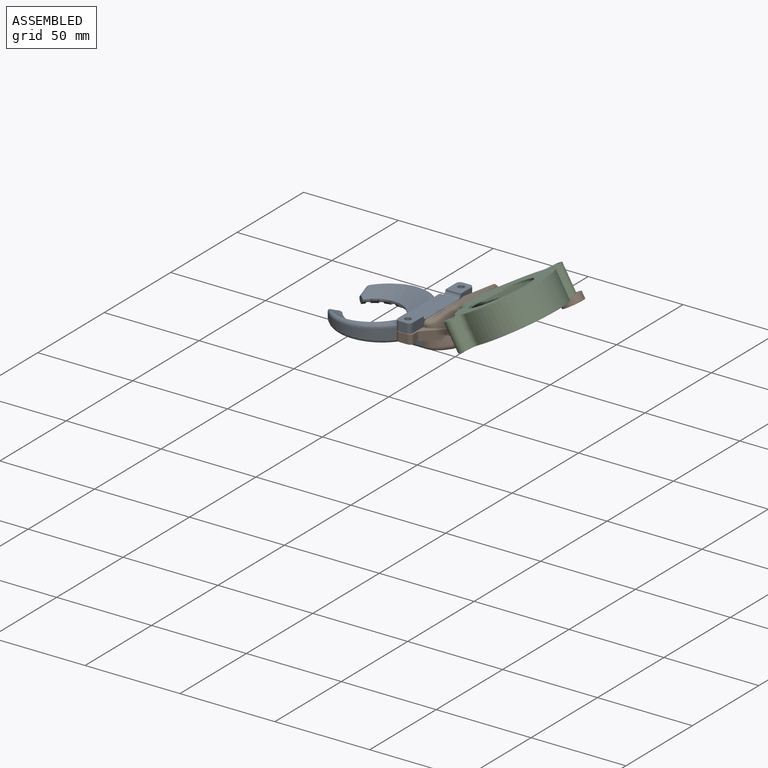
[diagram: assembled view]
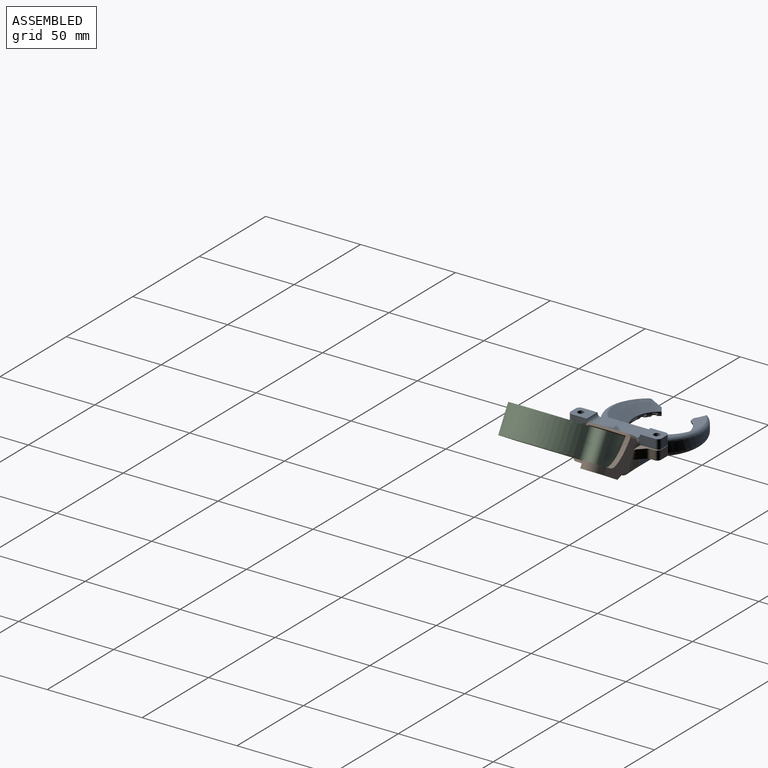
[diagram: assembled view, second angle]
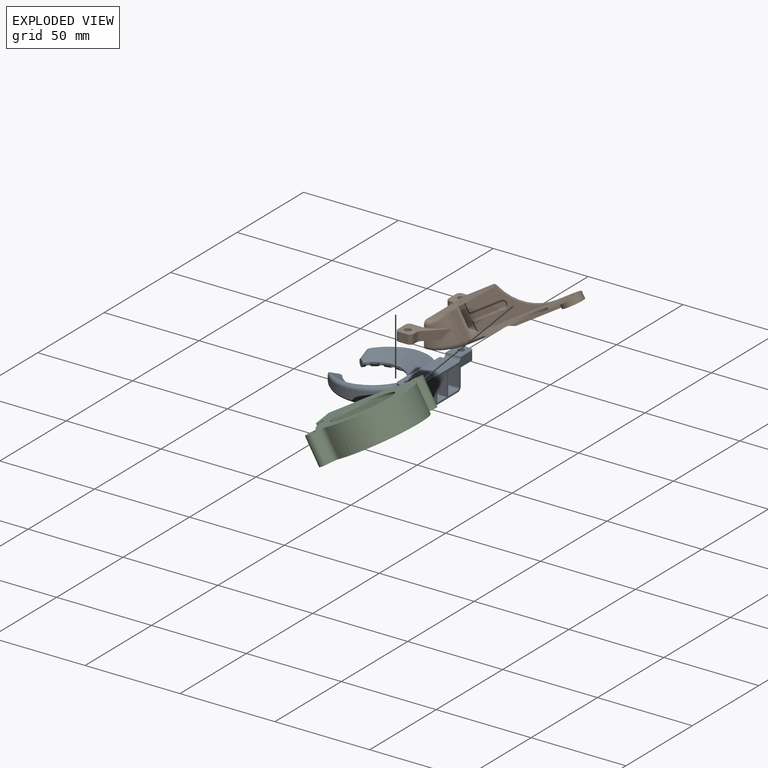
[diagram: exploded view]
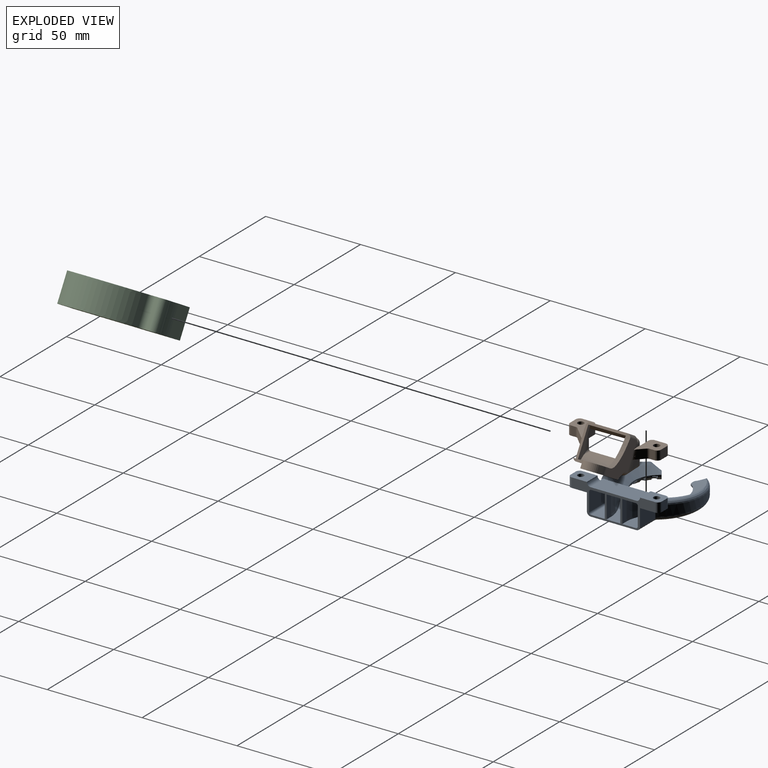
[diagram: exploded view, second angle]
ASSEMBLY  parts=3 mates=3
PART A: 230 faces, bbox 52.5x56.8x17.5 mm
  f0: plane 48.51x16.96mm, normal (0,0,1), area 265.4mm2, adj f13,f14,f15,f16,f17,f18,f42,f47
  f1: plane 9.54x7.19mm, normal (0,0,-1), area 65.7mm2, adj f42,f46,f57,f99
  f2: cone r=16mm half-angle=45deg, axis (0,0,-1), area 8.1mm2, adj f22,f25,f69,f74
  f3: cone r=16.85mm half-angle=45deg, axis (0,0,-1), area 3.1mm2, adj f6,f44,f67,f100
  f4: cone r=24mm half-angle=55.3deg, axis (0,0,1), area 344.9mm2, adj f21,f22,f26,f28,f29,f32
  f5: plane 16.88x11.17mm, normal (0,0.69,-0.72), area 183mm2, adj f6,f45,f51,f63,f64,f100,f106,f154
  f6: cone r=24.68mm half-angle=55.3deg, axis (0,0,1), area 34.2mm2, adj f3,f5,f19,f63,f64,f67,f68,f100
  f7: cone r=16mm half-angle=45deg, axis (0,0,-1), area 8.1mm2, adj f22,f25,f85,f89
  f8: cone r=16mm half-angle=45deg, axis (0,0,-1), area 8.1mm2, adj f22,f25,f81,f86
  f9: cone r=16mm half-angle=45deg, axis (0,0,-1), area 8.1mm2, adj f22,f25,f77,f82
  f10: cone r=16mm half-angle=45deg, axis (0,0,-1), area 8.1mm2, adj f22,f25,f73,f78
  f11: cone r=16mm half-angle=45deg, axis (0,0,-1), area 8.1mm2, adj f22,f25,f65,f70
  f12: cone r=16mm half-angle=45deg, axis (0,0,-1), area 10.7mm2, adj f22,f25,f66,f157
  f13: cone r=16.85mm half-angle=45deg, axis (0,0,-1), area 2.4mm2, adj f0,f47,f52,f55,f88
  f14: cone r=16.85mm half-angle=45deg, axis (0,0,-1), area 8.6mm2, adj f0,f52,f83,f88
  f15: cone r=16.85mm half-angle=45deg, axis (0,0,-1), area 8.6mm2, adj f0,f52,f79,f83
  f16: cone r=16.85mm half-angle=45deg, axis (0,0,-1), area 8.6mm2, adj f0,f52,f75,f79
  f17: cone r=16.85mm half-angle=45deg, axis (0,0,-1), area 8.6mm2, adj f0,f52,f71,f75
  f18: cone r=16.85mm half-angle=45deg, axis (0,0,-1), area 3.1mm2, adj f0,f52,f71,f99
  f19: cone r=16.85mm half-angle=45deg, axis (0,0,-1), area 8.6mm2, adj f6,f44,f63,f67
  f20: plane 4.01x2.08mm, normal (0,-1,0), area 4.5mm2, adj f21,f24,f29,f31
  f21: plane 4.36x3.82mm, normal (0.83,-0.55,0), area 11.3mm2, adj f4,f20,f22,f27,f29,f31
  f22: cylinder r=14mm len=28mm, axis (0,0,-1), area 54mm2, adj f2,f4,f7,f8,f9,f10,f11,f12
  f23: plane 12.43x10.01mm, normal (-1,0,0), area 105.6mm2, adj f26,f36,f40,f42,f60,f61,f62,f97
  f24: cylinder r=23.57mm len=37.39mm, axis (0,0,-1), area 189.7mm2, adj f20,f28,f29,f30,f97
  f25: plane 48.51x43.16mm, normal (0,0,-1), area 844.2mm2, adj f2,f7,f8,f9,f10,f11,f12,f27
  f26: plane 23.18x12.16mm, normal (0,-0.07,1), area 19.2mm2, adj f4,f23,f28,f32,f61,f98
  f27: cone r=16mm half-angle=45deg, axis (0,0,-1), area 4.9mm2, adj f21,f22,f25,f31,f90
  f28: bspline ~40.28x13.61mm, area 114.9mm2, adj f4,f24,f26,f29,f98
  f29: bspline ~11.68x7.46mm, area 23.6mm2, adj f4,f20,f21,f24,f28
  f30: torus R=21.57mm, axis (0,0,1), area 133.5mm2, adj f24,f25,f31,f96
  f31: cylinder r=2mm len=5.12mm, axis (1,0,0), area 13.4mm2, adj f20,f21,f25,f27,f30
  f32: plane 24x11.5mm, normal (0,-0.69,0.72), area 279.3mm2, adj f4,f26,f43,f61,f105,f123,f152
  f33: cylinder r=1.65mm len=5mm, axis (0,0,1), area 51.8mm2, adj f38,f40
  f34: plane 5x4mm, normal (-1,0,0), area 20mm2, adj f35,f38,f39,f40
  f35: cylinder r=2mm len=5mm, axis (0,0,-1), area 15.7mm2, adj f34,f36,f38,f40
  f36: plane 10x5mm, normal (0,-1,0), area 41.7mm2, adj f23,f35,f37,f38,f40,f60
  f37: cylinder r=2mm len=8mm, axis (0,1,0), area 25.1mm2, adj f36,f38,f42,f43
  f38: plane 10x8mm, normal (0,0,1), area 69.7mm2, adj f33,f34,f35,f36,f37,f39,f42
  f39: cylinder r=2mm len=5mm, axis (0,0,-1), area 15.7mm2, adj f34,f38,f40,f42
  f40: plane 10x8mm, normal (0,0,-1), area 69.7mm2, adj f23,f33,f34,f35,f36,f39,f42
  f41: plane 12.37x9.9mm, normal (1,0,0), area 115.9mm2, adj f42,f57,f58,f59,f92,f93
  f42: plane 44x16mm, normal (0,1,0), area 192mm2, adj f0,f1,f23,f25,f37,f38,f39,f40
  f43: plane 24x10mm, normal (0,0,1), area 240mm2, adj f32,f37,f42,f60,f133,f151
  f44: plane 22.66x21.64mm, normal (0,0,1), area 228mm2, adj f3,f19,f42,f51,f63,f67,f100,f104
  f45: plane 9.69x9.53mm, normal (0,0,-1), area 73.9mm2, adj f5,f42,f100,f191
  f46: plane 6.29x6.1mm, normal (0,0.69,-0.72), area 33mm2, adj f1,f52,f53,f58,f91,f99
  f47: cylinder r=0.8mm len=3.31mm, axis (1,0,0), area 3.8mm2, adj f0,f13,f48,f55,f56
  f48: torus R=21.57mm, axis (0,0,-1), area 51.9mm2, adj f0,f47,f54,f95
  f49: bspline ~11.02x5.97mm, area 7.1mm2, adj f50,f52,f54,f55,f56
  f50: bspline ~38.22x12.4mm, area 37.2mm2, adj f49,f52,f53,f54,f91,f92
  f51: cone r=16.85mm half-angle=45deg, axis (0,0,-1), area 10.7mm2, adj f5,f44,f63,f154
  f52: cone r=24.68mm half-angle=55.3deg, axis (0,0,1), area 264.1mm2, adj f13,f14,f15,f16,f17,f18,f46,f49
  f53: plane 13.76x10.47mm, normal (0,0.07,-1), area 8.3mm2, adj f46,f50,f52,f91
  f54: cylinder r=22.37mm len=35.58mm, axis (0,0,-1), area 193.2mm2, adj f48,f49,f50,f56,f93,f94
  f55: plane 2.77x2.33mm, normal (-0.83,0.55,0), area 3mm2, adj f13,f47,f49,f52,f56
  f56: plane 2.96x2.18mm, normal (0,1,0), area 4.3mm2, adj f47,f49,f54,f55
  f57: cylinder r=1mm len=9.52mm, axis (0,1,0), area 14.6mm2, adj f1,f41,f42,f58
  f58: cylinder r=1mm len=5mm, axis (0,0.72,0.69), area 8.2mm2, adj f41,f46,f57,f91
  f59: cylinder r=1mm len=13.44mm, axis (0,-1,0), area 19.7mm2, adj f0,f41,f42,f94,f95
  f60: cylinder r=2mm len=2mm, axis (0,1,0), area 5mm2, adj f23,f36,f43,f61
  f61: cylinder r=2mm len=5.88mm, axis (0,0.72,0.69), area 14.5mm2, adj f23,f26,f32,f60
  f62: cylinder r=2mm len=13.57mm, axis (0,-1,0), area 39.5mm2, adj f23,f25,f42,f96
  f63: bspline ~17.17x3.75mm, area 6mm2, adj f5,f6,f19,f25,f44,f51,f64,f65
  f64: plane 2.69x1.83mm, normal (0,0,-1), area 3.5mm2, adj f5,f6,f22,f63,f65,f66
  f65: plane 2.51x2.02mm, normal (0.98,0.21,0), area 1.9mm2, adj f11,f22,f25,f63,f64
  f66: plane 2.51x2.02mm, normal (-0.98,-0.21,0), area 1.9mm2, adj f12,f22,f25,f63,f64
  f67: bspline ~7.06x5.58mm, area 6mm2, adj f3,f6,f19,f25,f44,f68,f69,f70
  f68: plane 2.82x2.5mm, normal (0,0,-1), area 3.5mm2, adj f6,f22,f67,f69,f70
  f69: plane 2.51x1.75mm, normal (0.84,0.54,0), area 1.9mm2, adj f2,f22,f25,f67,f68
  f70: plane 2.51x1.75mm, normal (-0.84,-0.54,0), area 1.9mm2, adj f11,f22,f25,f67,f68
  f71: bspline ~13.29x11.89mm, area 6mm2, adj f0,f17,f18,f25,f52,f72,f73,f74
  f72: plane 2.8x2.59mm, normal (0,0,-1), area 3.5mm2, adj f22,f52,f71,f73,f74
  f73: plane 2.51x1.65mm, normal (0.6,0.8,0), area 1.9mm2, adj f10,f22,f25,f71,f72
  f74: plane 2.51x1.65mm, normal (-0.6,-0.8,0), area 1.9mm2, adj f2,f22,f25,f71,f72
  f75: bspline ~16.96x7mm, area 6mm2, adj f0,f16,f17,f25,f52,f76,f77,f78
  f76: plane 2.75x2.03mm, normal (0,0,-1), area 3.5mm2, adj f22,f52,f75,f77,f78
  f77: plane 2.51x1.98mm, normal (0.28,0.96,0), area 1.9mm2, adj f9,f22,f25,f75,f76
  f78: plane 2.51x1.98mm, normal (-0.28,-0.96,0), area 1.9mm2, adj f10,f22,f25,f75,f76
  f79: bspline ~17.31x3.62mm, area 6mm2, adj f0,f15,f16,f25,f52,f80,f81,f82
  f80: plane 2.57x1.56mm, normal (0,0,-1), area 3.5mm2, adj f22,f52,f79,f81,f82
  f81: plane 2.51x2.06mm, normal (-0.07,1,0), area 1.9mm2, adj f8,f22,f25,f79,f80
  f82: plane 2.51x2.06mm, normal (0.07,-1,0), area 1.9mm2, adj f9,f22,f25,f79,f80
  f83: bspline ~7.31x4.91mm, area 6mm2, adj f0,f14,f15,f25,f52,f84,f85,f86
  f84: plane 2.81x2.29mm, normal (0,0,-1), area 3.5mm2, adj f22,f52,f83,f85,f86
  f85: plane 2.51x1.88mm, normal (-0.41,0.91,0), area 1.9mm2, adj f7,f22,f25,f83,f84
  f86: plane 2.51x1.88mm, normal (0.41,-0.91,0), area 1.9mm2, adj f8,f22,f25,f83,f84
  f87: plane 2.72x2.72mm, normal (0,0,-1), area 3.5mm2, adj f22,f52,f88,f89,f90
  f88: bspline ~13.45x13.45mm, area 6mm2, adj f0,f13,f14,f25,f52,f87,f89,f90
  f89: plane 2.51x1.46mm, normal (0.71,-0.71,0), area 1.9mm2, adj f7,f22,f25,f87,f88
  f90: plane 2.51x1.46mm, normal (-0.71,0.71,0), area 1.9mm2, adj f22,f25,f27,f87,f88
  f91: bspline ~2x1.97mm, area 2.6mm2, adj f46,f50,f53,f58,f92
  f92: bspline ~1.76x1.36mm, area 1.2mm2, adj f41,f50,f91,f93
  f93: cylinder r=2mm len=5.8mm, axis (0,0,-1), area 10.7mm2, adj f41,f54,f92,f94
  f94: bspline ~1.63x1.01mm, area 0.2mm2, adj f54,f59,f93,f95
  f95: bspline ~1.79x1.68mm, area 1mm2, adj f48,f59,f94
  f96: bspline ~2.75x2.01mm, area 2.4mm2, adj f30,f62,f97
  f97: plane 5.68x1.55mm, normal (-0.9,0.43,0), area 9.7mm2, adj f23,f24,f96,f98
  f98: bspline ~6.13x3.84mm, area 7.7mm2, adj f23,f26,f28,f97
  f99: extruded ~24.77x11.9mm, area 215.7mm2, adj f0,f1,f18,f42,f46,f52
  f100: extruded ~24.09x11.9mm, area 212.3mm2, adj f3,f5,f6,f42,f44,f45
  f101: plane 48.51x16.96mm, normal (0,0,1), area 265.4mm2, adj f42,f112,f113,f114,f115,f116,f117,f139
  f102: plane 9.54x7.19mm, normal (0,0,-1), area 65.7mm2, adj f42,f138,f148,f190
  f103: cone r=16mm half-angle=45deg, axis (0,0,-1), area 8.1mm2, adj f22,f25,f160,f165
  f104: cone r=16.85mm half-angle=45deg, axis (0,0,-1), area 3.1mm2, adj f44,f106,f158,f191
  f105: cone r=24mm half-angle=55.3deg, axis (0,0,1), area 344.9mm2, adj f22,f32,f120,f123,f125,f126
  f106: cone r=24.68mm half-angle=55.3deg, axis (0,0,1), area 34.2mm2, adj f5,f104,f118,f154,f155,f158,f159,f191
  f107: cone r=16mm half-angle=45deg, axis (0,0,-1), area 8.1mm2, adj f22,f25,f176,f180
  f108: cone r=16mm half-angle=45deg, axis (0,0,-1), area 8.1mm2, adj f22,f25,f172,f177
  f109: cone r=16mm half-angle=45deg, axis (0,0,-1), area 8.1mm2, adj f22,f25,f168,f173
  f110: cone r=16mm half-angle=45deg, axis (0,0,-1), area 8.1mm2, adj f22,f25,f164,f169
  f111: cone r=16mm half-angle=45deg, axis (0,0,-1), area 8.1mm2, adj f22,f25,f156,f161
  f112: cone r=16.85mm half-angle=45deg, axis (0,0,-1), area 2.4mm2, adj f101,f139,f143,f146,f179
  f113: cone r=16.85mm half-angle=45deg, axis (0,0,-1), area 8.6mm2, adj f101,f143,f174,f179
  f114: cone r=16.85mm half-angle=45deg, axis (0,0,-1), area 8.6mm2, adj f101,f143,f170,f174
  f115: cone r=16.85mm half-angle=45deg, axis (0,0,-1), area 8.6mm2, adj f101,f143,f166,f170
  f116: cone r=16.85mm half-angle=45deg, axis (0,0,-1), area 8.6mm2, adj f101,f143,f162,f166
  f117: cone r=16.85mm half-angle=45deg, axis (0,0,-1), area 3.1mm2, adj f101,f143,f162,f190
  f118: cone r=16.85mm half-angle=45deg, axis (0,0,-1), area 8.6mm2, adj f44,f106,f154,f158
  f119: plane 4.01x2.08mm, normal (0,-1,0), area 4.5mm2, adj f120,f122,f126,f128
  f120: plane 4.36x3.82mm, normal (-0.83,-0.55,0), area 11.3mm2, adj f22,f105,f119,f124,f126,f128
  f121: plane 12.43x10.01mm, normal (1,0,0), area 105.6mm2, adj f42,f123,f132,f136,f151,f152,f153,f188
  f122: cylinder r=23.57mm len=37.39mm, axis (0,0,-1), area 189.7mm2, adj f119,f125,f126,f127,f188
  f123: plane 23.18x12.16mm, normal (0,-0.07,1), area 19.2mm2, adj f32,f105,f121,f125,f152,f189
  f124: cone r=16mm half-angle=45deg, axis (0,0,-1), area 4.9mm2, adj f22,f25,f120,f128,f181
  f125: bspline ~40.28x13.61mm, area 114.9mm2, adj f105,f122,f123,f126,f189
  f126: bspline ~11.68x7.46mm, area 23.6mm2, adj f105,f119,f120,f122,f125
  f127: torus R=21.57mm, axis (0,0,1), area 133.5mm2, adj f25,f122,f128,f187
  f128: cylinder r=2mm len=5.12mm, axis (-1,0,0), area 13.4mm2, adj f25,f119,f120,f124,f127
  f129: cylinder r=1.65mm len=5mm, axis (0,0,1), area 51.8mm2, adj f134,f136
  f130: plane 5x4mm, normal (1,0,0), area 20mm2, adj f131,f134,f135,f136
  f131: cylinder r=2mm len=5mm, axis (0,0,-1), area 15.7mm2, adj f130,f132,f134,f136
  f132: plane 10x5mm, normal (0,-1,0), area 41.7mm2, adj f121,f131,f133,f134,f136,f151
  f133: cylinder r=2mm len=8mm, axis (0,1,0), area 25.1mm2, adj f42,f43,f132,f134
  f134: plane 10x8mm, normal (0,0,1), area 69.7mm2, adj f42,f129,f130,f131,f132,f133,f135
  f135: cylinder r=2mm len=5mm, axis (0,0,-1), area 15.7mm2, adj f42,f130,f134,f136
  f136: plane 10x8mm, normal (0,0,-1), area 69.7mm2, adj f42,f121,f129,f130,f131,f132,f135
  f137: plane 12.37x9.9mm, normal (-1,0,0), area 115.9mm2, adj f42,f148,f149,f150,f183,f184
  f138: plane 6.29x6.1mm, normal (0,0.69,-0.72), area 33mm2, adj f102,f143,f144,f149,f182,f190
  f139: cylinder r=0.8mm len=3.31mm, axis (-1,0,0), area 3.8mm2, adj f101,f112,f140,f146,f147
  f140: torus R=21.57mm, axis (0,0,-1), area 51.9mm2, adj f101,f139,f145,f186
  f141: bspline ~11.02x5.97mm, area 7.1mm2, adj f142,f143,f145,f146,f147
  f142: bspline ~38.22x12.4mm, area 37.2mm2, adj f141,f143,f144,f145,f182,f183
  f143: cone r=24.68mm half-angle=55.3deg, axis (0,0,1), area 264.1mm2, adj f112,f113,f114,f115,f116,f117,f138,f141
  f144: plane 13.76x10.47mm, normal (0,0.07,-1), area 8.3mm2, adj f138,f142,f143,f182
  f145: cylinder r=22.37mm len=35.58mm, axis (0,0,-1), area 193.2mm2, adj f140,f141,f142,f147,f184,f185
  f146: plane 2.77x2.33mm, normal (0.83,0.55,0), area 3mm2, adj f112,f139,f141,f143,f147
  f147: plane 2.96x2.18mm, normal (0,1,0), area 4.3mm2, adj f139,f141,f145,f146
  f148: cylinder r=1mm len=9.52mm, axis (0,1,0), area 14.6mm2, adj f42,f102,f137,f149
  f149: cylinder r=1mm len=5mm, axis (0,0.72,0.69), area 8.2mm2, adj f137,f138,f148,f182
  f150: cylinder r=1mm len=13.44mm, axis (0,-1,0), area 19.7mm2, adj f42,f101,f137,f185,f186
  f151: cylinder r=2mm len=2mm, axis (0,1,0), area 5mm2, adj f43,f121,f132,f152
  f152: cylinder r=2mm len=5.88mm, axis (0,0.72,0.69), area 14.5mm2, adj f32,f121,f123,f151
  f153: cylinder r=2mm len=13.57mm, axis (0,-1,0), area 39.5mm2, adj f25,f42,f121,f187
  f154: bspline ~17.17x3.75mm, area 6mm2, adj f5,f25,f44,f51,f106,f118,f155,f156
  f155: plane 2.69x1.84mm, normal (0,0,-1), area 3.5mm2, adj f5,f22,f106,f154,f156,f157
  f156: plane 2.51x2.02mm, normal (-0.98,0.21,0), area 1.9mm2, adj f22,f25,f111,f154,f155
  f157: plane 2.51x2.02mm, normal (0.98,-0.21,0), area 1.9mm2, adj f12,f22,f25,f154,f155
  f158: bspline ~7.06x5.58mm, area 6mm2, adj f25,f44,f104,f106,f118,f159,f160,f161
  f159: plane 2.82x2.5mm, normal (0,0,-1), area 3.5mm2, adj f22,f106,f158,f160,f161
  f160: plane 2.51x1.75mm, normal (-0.84,0.54,0), area 1.9mm2, adj f22,f25,f103,f158,f159
  f161: plane 2.51x1.75mm, normal (0.84,-0.54,0), area 1.9mm2, adj f22,f25,f111,f158,f159
  f162: bspline ~13.29x11.89mm, area 6mm2, adj f25,f101,f116,f117,f143,f163,f164,f165
  f163: plane 2.8x2.59mm, normal (0,0,-1), area 3.5mm2, adj f22,f143,f162,f164,f165
  f164: plane 2.51x1.65mm, normal (-0.6,0.8,0), area 1.9mm2, adj f22,f25,f110,f162,f163
  f165: plane 2.51x1.65mm, normal (0.6,-0.8,0), area 1.9mm2, adj f22,f25,f103,f162,f163
  f166: bspline ~16.96x7mm, area 6mm2, adj f25,f101,f115,f116,f143,f167,f168,f169
  f167: plane 2.75x2.04mm, normal (0,0,-1), area 3.5mm2, adj f22,f143,f166,f168,f169
  f168: plane 2.51x1.98mm, normal (-0.28,0.96,0), area 1.9mm2, adj f22,f25,f109,f166,f167
  f169: plane 2.51x1.98mm, normal (0.28,-0.96,0), area 1.9mm2, adj f22,f25,f110,f166,f167
  f170: bspline ~17.31x3.62mm, area 6mm2, adj f25,f101,f114,f115,f143,f171,f172,f173
  f171: plane 2.57x1.57mm, normal (0,0,-1), area 3.5mm2, adj f22,f143,f170,f172,f173
  f172: plane 2.51x2.06mm, normal (0.07,1,0), area 1.9mm2, adj f22,f25,f108,f170,f171
  f173: plane 2.51x2.06mm, normal (-0.07,-1,0), area 1.9mm2, adj f22,f25,f109,f170,f171
  f174: bspline ~7.31x4.91mm, area 6mm2, adj f25,f101,f113,f114,f143,f175,f176,f177
  f175: plane 2.81x2.29mm, normal (0,0,-1), area 3.5mm2, adj f22,f143,f174,f176,f177
  f176: plane 2.51x1.88mm, normal (0.41,0.91,0), area 1.9mm2, adj f22,f25,f107,f174,f175
  f177: plane 2.51x1.88mm, normal (-0.41,-0.91,0), area 1.9mm2, adj f22,f25,f108,f174,f175
  f178: plane 2.72x2.72mm, normal (0,0,-1), area 3.5mm2, adj f22,f143,f179,f180,f181
  f179: bspline ~13.45x13.45mm, area 6mm2, adj f25,f101,f112,f113,f143,f178,f180,f181
  f180: plane 2.51x1.46mm, normal (-0.71,-0.71,0), area 1.9mm2, adj f22,f25,f107,f178,f179
  f181: plane 2.51x1.46mm, normal (0.71,0.71,0), area 1.9mm2, adj f22,f25,f124,f178,f179
  f182: bspline ~2x1.97mm, area 2.6mm2, adj f138,f142,f144,f149,f183
  f183: bspline ~1.76x1.36mm, area 1.2mm2, adj f137,f142,f182,f184
  f184: cylinder r=2mm len=5.8mm, axis (0,0,-1), area 10.7mm2, adj f137,f145,f183,f185
  f185: bspline ~1.63x1.01mm, area 0.2mm2, adj f145,f150,f184,f186
  f186: bspline ~1.87x1.78mm, area 1.4mm2, adj f140,f150,f185
  f187: bspline ~2.75x2.01mm, area 2.4mm2, adj f127,f153,f188
  f188: plane 5.68x1.55mm, normal (0.9,0.43,0), area 9.7mm2, adj f121,f122,f187,f189
  f189: bspline ~6.13x3.84mm, area 7.7mm2, adj f121,f123,f125,f188
  f190: extruded ~24.77x11.9mm, area 215.7mm2, adj f42,f101,f102,f117,f138,f143
  f191: extruded ~24.09x11.9mm, area 212.3mm2, adj f5,f42,f44,f45,f104,f106
  f192: plane 2.27x2.27mm, normal (0,0,1), area 1.4mm2, adj f194,f195,f196,f197
  f193: plane 2.27x2.27mm, normal (0,0,-1), area 1.4mm2, adj f194,f195,f196,f197
  f194: cylinder r=2.85mm len=2.6mm, axis (0,0,1), area 8.9mm2, adj f192,f193,f195,f197
  f195: plane 2.6x1.47mm, normal (1,0,0), area 3.8mm2, adj f192,f193,f194,f196
  f196: cylinder r=0.8mm len=2.6mm, axis (0,0,-1), area 3.3mm2, adj f192,f193,f195,f197
  f197: plane 2.6x1.47mm, normal (0,-1,0), area 3.8mm2, adj f192,f193,f194,f196
  f198: plane 5.6x1.3mm, normal (-1,0,0), area 7.3mm2, adj f199,f201,f203,f204
  f199: cylinder r=3.2mm len=5.6mm, axis (0,1,0), area 9.2mm2, adj f198,f200,f203,f204
  f200: plane 5.6x4.5mm, normal (0,0,-1), area 15.5mm2, adj f199,f202,f203,f204
  f201: plane 5.6x5.47mm, normal (0,0,1), area 20.9mm2, adj f198,f202,f203,f204
  f202: cylinder r=2.85mm len=5.6mm, axis (0,0,1), area 20.5mm2, adj f200,f201,f203,f204
  f203: plane 5.47x2.6mm, normal (0,-1,0), area 13.5mm2, adj f198,f199,f200,f201,f202
  f204: plane 5.47x2.6mm, normal (0,1,0), area 13.5mm2, adj f198,f199,f200,f201,f202
  f205: plane 2.27x2.27mm, normal (0,0,1), area 1.4mm2, adj f207,f208,f209,f210
  f206: plane 2.27x2.27mm, normal (0,0,-1), area 1.4mm2, adj f207,f208,f209,f210
  f207: cylinder r=0.8mm len=2.6mm, axis (0,0,-1), area 3.3mm2, adj f205,f206,f208,f209
  f208: plane 2.6x1.47mm, normal (0,1,0), area 3.8mm2, adj f205,f206,f207,f210
  f209: plane 2.6x1.47mm, normal (1,0,0), area 3.8mm2, adj f205,f206,f207,f210
  f210: cylinder r=2.85mm len=2.6mm, axis (0,0,1), area 8.9mm2, adj f205,f206,f208,f209
  f211: plane 2.27x2.27mm, normal (0,0,1), area 1.4mm2, adj f213,f214,f215,f216
  f212: plane 2.27x2.27mm, normal (0,0,-1), area 1.4mm2, adj f213,f214,f215,f216
  f213: cylinder r=2.85mm len=2.6mm, axis (0,0,1), area 8.9mm2, adj f211,f212,f214,f216
  f214: plane 2.6x1.47mm, normal (-1,0,0), area 3.8mm2, adj f211,f212,f213,f215
  f215: cylinder r=0.8mm len=2.6mm, axis (0,0,-1), area 3.3mm2, adj f211,f212,f214,f216
  f216: plane 2.6x1.47mm, normal (0,-1,0), area 3.8mm2, adj f211,f212,f213,f215
  f217: plane 5.6x1.3mm, normal (1,0,0), area 7.3mm2, adj f218,f220,f222,f223
  f218: cylinder r=3.2mm len=5.6mm, axis (0,1,0), area 9.2mm2, adj f217,f219,f222,f223
  f219: plane 5.6x4.5mm, normal (0,0,-1), area 15.5mm2, adj f218,f221,f222,f223
  f220: plane 5.6x5.47mm, normal (0,0,1), area 20.9mm2, adj f217,f221,f222,f223
  f221: cylinder r=2.85mm len=5.6mm, axis (0,0,1), area 20.5mm2, adj f219,f220,f222,f223
  f222: plane 5.47x2.6mm, normal (0,-1,0), area 13.5mm2, adj f217,f218,f219,f220,f221
  f223: plane 5.47x2.6mm, normal (0,1,0), area 13.5mm2, adj f217,f218,f219,f220,f221
  f224: plane 2.27x2.27mm, normal (0,0,1), area 1.4mm2, adj f226,f227,f228,f229
  f225: plane 2.27x2.27mm, normal (0,0,-1), area 1.4mm2, adj f226,f227,f228,f229
  f226: cylinder r=0.8mm len=2.6mm, axis (0,0,-1), area 3.3mm2, adj f224,f225,f227,f228
  f227: plane 2.6x1.47mm, normal (0,1,0), area 3.8mm2, adj f224,f225,f226,f229
  f228: plane 2.6x1.47mm, normal (-1,0,0), area 3.8mm2, adj f224,f225,f226,f229
  f229: cylinder r=2.85mm len=2.6mm, axis (0,0,1), area 8.9mm2, adj f224,f225,f227,f228
PART B: 107 faces, bbox 57x66.9x30.3 mm
  f0: plane 47.04x21.16mm, normal (-0.94,-0.3,-0.17), area 446.3mm2, adj f1,f3,f27,f48,f58,f61,f70,f71
  f1: bspline ~14.34x10.05mm, area 35mm2, adj f0,f29,f32,f85,f100
  f2: bspline ~15.22x10.15mm, area 15.1mm2, adj f52,f55,f56,f57,f87,f92,f94,f105
  f3: plane 44.14x36.72mm, normal (0,-0.5,0.87), area 625.9mm2, adj f0,f39,f42,f43,f51,f52,f57,f58
  f4: plane 1.2x0.8mm, normal (1,0,0), area 1mm2, adj f11,f12,f46,f81
  f5: plane 1.2x0.8mm, normal (-1,0,0), area 1mm2, adj f11,f27,f48,f72
  f6: plane 4.8x2.34mm, normal (0,1,0), area 11.2mm2, adj f12,f14,f98,f103
  f7: cylinder r=1.65mm len=3.3mm, axis (0,0,1), area 29mm2, adj f12,f20
  f8: plane 24x0.8mm, normal (0,0,-1), area 19.2mm2, adj f11,f49,f78,f84
  f9: plane 24x0.8mm, normal (0,0,1), area 19.2mm2, adj f11,f47,f72,f81
  f10: plane 4.8x4.5mm, normal (1,0,0), area 21.6mm2, adj f12,f14,f23,f98
  f11: plane 28.4x14mm, normal (0,-1,0), area 94.4mm2, adj f4,f5,f8,f9,f12,f13,f14,f16
  f12: plane 19.24x15.69mm, normal (0,0,1), area 93mm2, adj f4,f6,f7,f10,f11,f13,f15,f22
  f13: plane 6.2x4.8mm, normal (-1,0,0), area 29.8mm2, adj f11,f12,f14,f22
  f14: plane 17.25x13.77mm, normal (0,0,-1), area 62.9mm2, adj f6,f10,f11,f13,f15,f19,f21,f22
  f15: plane 5.8x4.8mm, normal (0,-1,0), area 27.8mm2, adj f12,f14,f22,f23
  f16: plane 9.6x0.8mm, normal (-1,0,0), area 7.7mm2, adj f11,f54,f89,f91
  f17: plane 23.6x0.8mm, normal (0,0,1), area 18.9mm2, adj f11,f57,f88,f89
  f18: plane 23.6x0.8mm, normal (0,0,-1), area 18.9mm2, adj f11,f50,f55,f91,f93
  f19: plane 4x0.8mm, normal (1,0,0), area 3.2mm2, adj f11,f14,f46,f78
  f20: plane 6.5x6.5mm, normal (0,0,-1), area 24.6mm2, adj f7,f21
  f21: cylinder r=3.25mm len=6.5mm, axis (0,0,-1), area 40.8mm2, adj f14,f20
  f22: cylinder r=2mm len=4.8mm, axis (0,0,1), area 15.1mm2, adj f12,f13,f14,f15
  f23: cylinder r=2mm len=4.8mm, axis (0,0,-1), area 15.1mm2, adj f10,f12,f14,f15
  f24: plane 4.8x2.34mm, normal (0,1,0), area 11.2mm2, adj f27,f29,f99,f104
  f25: cylinder r=1.65mm len=3.3mm, axis (0,0,1), area 29mm2, adj f27,f33
  f26: plane 4.8x4.5mm, normal (-1,0,0), area 21.6mm2, adj f27,f29,f36,f99
  f27: plane 14.59x10.5mm, normal (0,0,1), area 83.7mm2, adj f0,f5,f11,f24,f25,f26,f28,f30
  f28: plane 6.2x4.8mm, normal (1,0,0), area 29.8mm2, adj f11,f27,f29,f35
  f29: plane 14.72x10.39mm, normal (0,0,-1), area 59.6mm2, adj f1,f11,f24,f26,f28,f30,f32,f34
  f30: plane 5.8x4.8mm, normal (0,-1,0), area 27.8mm2, adj f27,f29,f35,f36
  f31: plane 9.6x0.8mm, normal (1,0,0), area 7.7mm2, adj f11,f56,f88,f93
  f32: plane 4x0.8mm, normal (-1,0,0), area 3.2mm2, adj f1,f11,f29,f84
  f33: plane 6.5x6.5mm, normal (0,0,-1), area 24.6mm2, adj f25,f34
  f34: cylinder r=3.25mm len=6.5mm, axis (0,0,-1), area 40.8mm2, adj f29,f33
  f35: cylinder r=2mm len=4.8mm, axis (0,0,1), area 15.1mm2, adj f27,f28,f29,f30
  f36: cylinder r=2mm len=4.8mm, axis (0,0,-1), area 15.1mm2, adj f26,f27,f29,f30
  f37: plane 4.8x3.56mm, normal (-0.71,0.71,0), area 22.2mm2, adj f27,f29,f100,f101,f104
  f38: plane 9.34x9.34mm, normal (0.71,0.71,0), area 53.9mm2, adj f12,f14,f102,f103
  f39: bspline ~6.08x4.76mm, area 0mm2, adj f3,f52,f57
  f40: plane 41.39x32.31mm, normal (0,0.5,-0.87), area 522mm2, adj f41,f49,f59,f60,f69,f80,f86
  f41: extruded ~8.52x7.34mm, area 33.9mm2, adj f40,f58,f61,f69
  f42: cylinder r=1.65mm len=3.46mm, axis (0,0.5,-0.87), area 12.4mm2, adj f3,f68
  f43: plane 24.14x17.1mm, normal (0.17,0.85,0.49), area 49.4mm2, adj f3,f44,f45,f51,f52,f53,f80,f83
  f44: plane 13.53x9.44mm, normal (0.94,0.3,0.17), area 42mm2, adj f43,f46,f80,f83
  f45: plane 22.99x12.27mm, normal (0,-0.5,0.87), area 183.1mm2, adj f43,f47,f71,f77,f83
  f46: bspline ~16.46x15.8mm, area 127.4mm2, adj f4,f12,f14,f19,f44,f79,f82,f102
  f47: bspline ~24.89x7.31mm, area 130.4mm2, adj f9,f45,f73,f74,f75,f82
  f48: bspline ~11.39x7.03mm, area 7.7mm2, adj f0,f5,f27,f73
  f49: bspline ~24.85x16.31mm, area 304.5mm2, adj f8,f40,f79,f85
  f50: offset ~29.67x18.39mm, area 150.2mm2, adj f18,f53,f54,f55,f90
  f51: plane 15.25x10.81mm, normal (-0.94,-0.3,-0.17), area 57.6mm2, adj f3,f43,f53,f54
  f52: plane 39.61x22.31mm, normal (0.94,0.3,0.17), area 266.7mm2, adj f2,f3,f39,f43,f53,f55,f71,f95
  f53: plane 23.58x12.24mm, normal (0,0.5,-0.87), area 183mm2, adj f43,f50,f51,f52,f55
  f54: offset ~22.15x19.2mm, area 198.1mm2, adj f16,f50,f51,f57,f89,f90
  f55: offset ~6.8x4.6mm, area 6.2mm2, adj f2,f18,f50,f52,f53,f92
  f56: offset ~19.33x12.41mm, area 45.5mm2, adj f2,f31,f87,f92
  f57: offset ~27.83x18.89mm, area 299.8mm2, adj f2,f3,f17,f39,f54,f87,f89
  f58: cylinder r=5.5mm len=10.17mm, axis (0,0.5,-0.87), area 59.7mm2, adj f0,f3,f41,f59,f61
  f59: plane 7.99x5.31mm, normal (0.85,0.46,0.26), area 12.1mm2, adj f3,f40,f58,f60
  f60: cylinder r=19.5mm len=20.96mm, axis (0,0.5,-0.87), area 40.4mm2, adj f3,f40,f59,f80
  f61: plane 31.01x17.9mm, normal (0,0.5,-0.87), area 123.4mm2, adj f0,f41,f58,f62,f63,f64,f65,f66
  f62: plane 3.21x3.05mm, normal (0.66,0.65,0.38), area 7.9mm2, adj f61,f63,f67,f68
  f63: plane 3.95x3.72mm, normal (0.98,-0.17,-0.1), area 7.9mm2, adj f61,f62,f64,f68
  f64: plane 3x2.68mm, normal (0.33,-0.82,-0.47), area 7.9mm2, adj f61,f63,f65,f68
  f65: plane 3.21x3.05mm, normal (-0.66,-0.65,-0.38), area 7.9mm2, adj f61,f64,f66,f68
  f66: plane 3.95x3.72mm, normal (-0.98,0.17,0.1), area 7.9mm2, adj f61,f65,f67,f68
  f67: plane 3x2.68mm, normal (-0.33,0.82,0.47), area 7.9mm2, adj f61,f62,f66,f68
  f68: plane 6x5.4mm, normal (0,0.5,-0.87), area 17.6mm2, adj f42,f62,f63,f64,f65,f66,f67
  f69: plane 27.16x14.96mm, normal (0.94,0.3,0.17), area 72.3mm2, adj f40,f41,f61,f70
  f70: plane 13.35x5.84mm, normal (0.13,0.14,-0.98), area 14.9mm2, adj f0,f61,f69,f86
  f71: cylinder r=24.37mm len=27.9mm, axis (0.94,0.3,0.17), area 66.4mm2, adj f0,f3,f45,f52,f77
  f72: cylinder r=2mm len=2mm, axis (0,-1,0), area 2.5mm2, adj f5,f9,f11,f73
  f73: bspline ~3.39x2.42mm, area 6.2mm2, adj f47,f48,f72,f74
  f74: bspline ~2.3x2.29mm, area 1mm2, adj f0,f47,f73,f76
  f75: bspline ~0.47x0.46mm, area 0mm2, adj f47,f76,f77
  f76: bspline ~2.09x1.97mm, area 0.8mm2, adj f74,f75,f77
  f77: cylinder r=2mm len=13.4mm, axis (-0.34,0.81,0.47), area 47.8mm2, adj f0,f45,f71,f75,f76
  f78: cylinder r=2mm len=2mm, axis (0,1,0), area 2.5mm2, adj f8,f11,f19,f79
  f79: bspline ~17.21x8.75mm, area 58.4mm2, adj f46,f49,f78,f80
  f80: cylinder r=2mm len=8.67mm, axis (-0.34,0.81,0.47), area 24.7mm2, adj f3,f40,f43,f44,f60,f79
  f81: cylinder r=2mm len=2mm, axis (0,-1,0), area 2.5mm2, adj f4,f9,f11,f82
  f82: bspline ~8.95x8.71mm, area 40.8mm2, adj f46,f47,f81,f83
  f83: cylinder r=2mm len=4.97mm, axis (0.34,-0.81,-0.47), area 11.2mm2, adj f43,f44,f45,f82
  f84: cylinder r=2mm len=2mm, axis (0,1,0), area 2.5mm2, adj f8,f11,f32,f85
  f85: bspline ~11.6x2.96mm, area 31.7mm2, adj f1,f49,f84,f86
  f86: cylinder r=2mm len=10.07mm, axis (0.34,-0.81,-0.47), area 25.4mm2, adj f0,f40,f70,f85
  f87: bspline ~11.65x1.54mm, area 13.5mm2, adj f2,f56,f57,f88
  f88: cylinder r=1mm len=1mm, axis (0,-1,0), area 1.3mm2, adj f11,f17,f31,f87
  f89: cylinder r=1mm len=3.9mm, axis (0,-1,0), area 3.7mm2, adj f11,f16,f17,f54,f57
  f90: bspline ~5.71x1.77mm, area 1.6mm2, adj f50,f54,f91
  f91: cylinder r=1mm len=1mm, axis (0,1,0), area 1.3mm2, adj f11,f16,f18,f90
  f92: bspline ~2.73x2.49mm, area 3.2mm2, adj f2,f55,f56,f93
  f93: cylinder r=1mm len=1mm, axis (0,1,0), area 1.3mm2, adj f11,f18,f31,f92
  f94: plane 15.98x11.11mm, normal (0.94,0.3,0.17), area 43.8mm2, adj f2,f95,f96,f97,f105,f106
  f95: plane 13.63x7.72mm, normal (0.66,-0.14,0.73), area 21.7mm2, adj f52,f94,f96,f106
  f96: cone r=2.25mm half-angle=45deg, axis (0.94,0.3,0.17), area 7.8mm2, adj f52,f94,f95,f97
  f97: plane 12.8x8.43mm, normal (0.66,0.56,-0.49), area 21.7mm2, adj f52,f94,f96,f105
  f98: cylinder r=2mm len=4.8mm, axis (0,0,-1), area 15.1mm2, adj f6,f10,f12,f14
  f99: cylinder r=2mm len=4.8mm, axis (0,0,-1), area 15.1mm2, adj f24,f26,f27,f29
  f100: bspline ~2.99x2.02mm, area 3.8mm2, adj f1,f29,f37,f101
  f101: cylinder r=2mm len=3.45mm, axis (0.14,0.14,-0.98), area 6.6mm2, adj f0,f27,f37,f100
  f102: bspline ~7.35x4.32mm, area 4.3mm2, adj f12,f14,f38,f46
  f103: cylinder r=2mm len=4.8mm, axis (0,0,-1), area 7.5mm2, adj f6,f12,f14,f38
  f104: cylinder r=2mm len=4.8mm, axis (0,0,1), area 7.5mm2, adj f24,f27,f29,f37
  f105: bspline ~2.47x1.73mm, area 1.8mm2, adj f2,f52,f94,f97
  f106: bspline ~2.55x1.46mm, area 1.8mm2, adj f2,f52,f94,f95
PART C: 32 faces, bbox 53.1x53.8x17.6 mm
  f0: plane 19x15mm, normal (0,-1,0), area 64mm2, adj f2,f3,f6,f7,f11,f12,f16,f17
  f1: extruded ~15x11.72mm, area 183.9mm2, adj f2,f6,f7,f28
  f2: plane 26x15mm, normal (-1,0,0), area 390mm2, adj f0,f1,f6,f7
  f3: plane 15x1.99mm, normal (1,0,0), area 29.9mm2, adj f0,f6,f7,f8
  f4: extruded ~16.06x15mm, area 248.9mm2, adj f6,f7,f8,f29
  f5: extruded ~40.29x37.08mm, area 1033.5mm2, adj f6,f7,f30,f31
  f6: plane 51.28x50.53mm, normal (0,0,1), area 1377mm2, adj f0,f1,f2,f3,f4,f5,f8,f19
  f7: plane 51.28x50.53mm, normal (0,0,-1), area 2131.8mm2, adj f0,f1,f2,f3,f4,f5,f8,f20
  f8: cylinder r=3mm len=15mm, axis (0,0,-1), area 82mm2, adj f3,f4,f6,f7
  f9: extruded ~13x4.39mm, area 75.2mm2, adj f10,f15,f16,f17
  f10: extruded ~13.24x13mm, area 183.4mm2, adj f9,f11,f16,f17
  f11: plane 25.98x13mm, normal (1,0,0), area 337.7mm2, adj f0,f10,f16,f17
  f12: plane 13x1.99mm, normal (-1,0,0), area 25.9mm2, adj f0,f16,f17,f18
  f13: extruded ~17.22x13mm, area 234.9mm2, adj f14,f16,f17,f18
  f14: extruded ~13x4.22mm, area 74.8mm2, adj f13,f15,f16,f17
  f15: extruded ~40.44x37.34mm, area 918.4mm2, adj f9,f14,f16,f17
  f16: plane 52.83x51.08mm, normal (0,0,-1), area 1165.6mm2, adj f0,f9,f10,f11,f12,f13,f14,f15
  f17: plane 52.83x51.08mm, normal (0,0,1), area 1920.4mm2, adj f0,f9,f10,f11,f12,f13,f14,f15
  f18: cylinder r=4mm len=13mm, axis (0,0,-1), area 94.7mm2, adj f12,f13,f16,f17
  f19: cylinder r=15.5mm len=31mm, axis (0,0,1), area 97.4mm2, adj f6,f16
  f20: plane 15x1.5mm, normal (-0.65,-0.76,0), area 29.6mm2, adj f6,f7,f23,f28
  f21: plane 15x1.5mm, normal (0.65,0.76,0), area 29.6mm2, adj f6,f7,f23,f31
  f22: cylinder r=2mm len=15mm, axis (0,0,-1), area 188.5mm2, adj f6,f7
  f23: cylinder r=3mm len=15mm, axis (0,0,-1), area 141.4mm2, adj f6,f7,f20,f21
  f24: plane 15x1.44mm, normal (0.74,0.68,0), area 29.3mm2, adj f6,f7,f25,f30
  f25: cylinder r=3mm len=15mm, axis (0,0,-1), area 141.4mm2, adj f6,f7,f24,f26
  f26: plane 15x1.44mm, normal (-0.74,-0.68,0), area 29.3mm2, adj f6,f7,f25,f29
  f27: cylinder r=2mm len=15mm, axis (0,0,-1), area 188.5mm2, adj f6,f7
  f28: cylinder r=3mm len=15mm, axis (0,0,-1), area 61.4mm2, adj f1,f6,f7,f20
  f29: cylinder r=3mm len=15mm, axis (0,0,-1), area 60mm2, adj f4,f6,f7,f26
  f30: cylinder r=3mm len=15mm, axis (0,0,-1), area 60.1mm2, adj f5,f6,f7,f24
  f31: cylinder r=3mm len=15mm, axis (0,0,-1), area 61.4mm2, adj f5,f6,f7,f21
PLACE A rot(axis=(0,0,-1),90deg) t=(-25.17,5.38,-26.87)mm
PLACE B rot(axis=(0,0,-1),90deg) t=(-25.17,5.38,-26.87)mm fixed
PLACE C rot(axis=(0.24,-0.35,-0.91),75.4deg) t=(15.83,1.46,-7.64)mm
MATE fastened B.f7 <-> A.f129  axis (0,0,1) through (-29.67,-14.62,-16.07)mm
MATE parallel C.f2 <-> B.f52  axis (-0.3,0.94,-0.17) through (-6.5,22.39,-11.87)mm
MATE revolute C.f22 <-> B.f42  axis (0.5,0,-0.87) through (24.18,30.51,-2.81)mm
